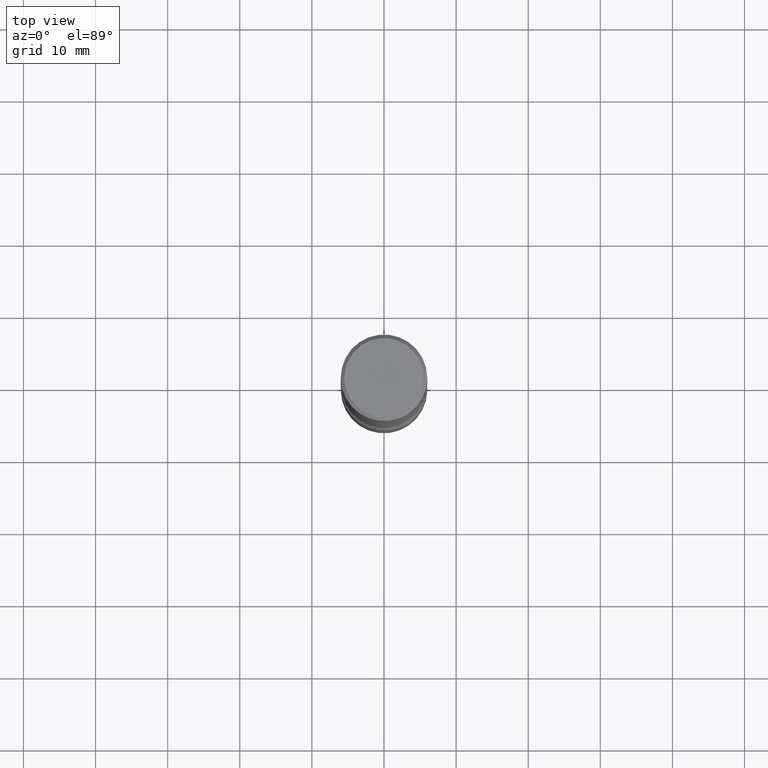
[diagram: clean part render]
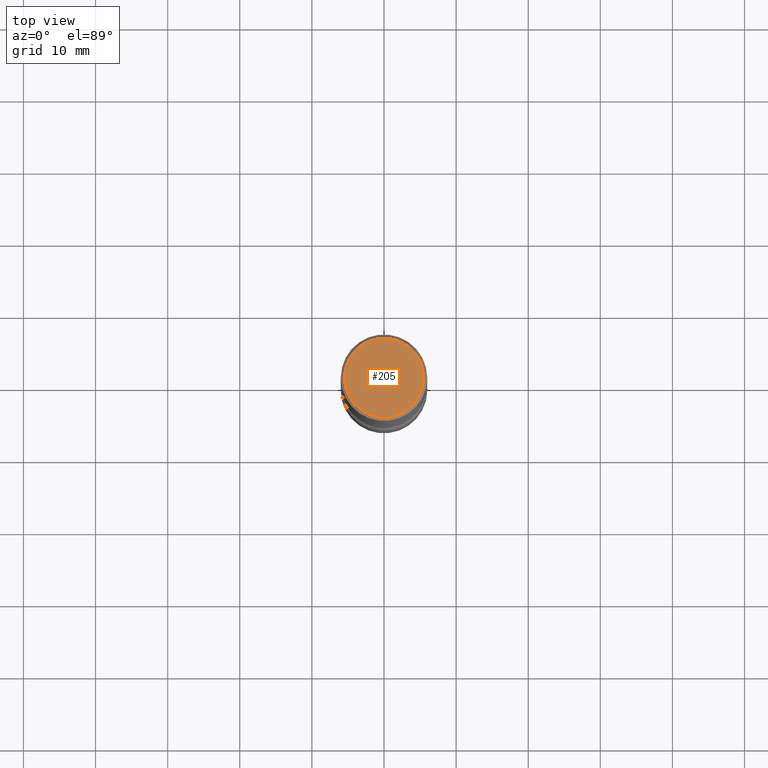
[diagram: same view with one face highlighted and labeled with its STEP entity id]
A machine part, top view. The second image highlights one B-rep face of the part: STEP entity #205.
In plain terms, the highlighted planar face has unit normal (0, -0, -1).
Its self-contained STEP definition (entity closure, byte-faithful):
#34 = AXIS2_PLACEMENT_3D ( 'NONE', #229, #145, #271 ) ;
#46 = FACE_OUTER_BOUND ( 'NONE', #204, .T. ) ;
#52 = DIRECTION ( 'NONE',  ( 2.438088387897960049E-29, -3.491481338843145188E-15, -1.000000000000000000 ) ) ;
#104 = CARTESIAN_POINT ( 'NONE',  ( -0.2161999999999998368, 1.544631344304201183E-15, 4.268512490089730842E-18 ) ) ;
#106 = AXIS2_PLACEMENT_3D ( 'NONE', #527, #445, #440 ) ;
#145 = DIRECTION ( 'NONE',  ( -2.445468806185136597E-29, 3.491481338843145583E-15, 1.000000000000000000 ) ) ;
#164 = VERTEX_POINT ( 'NONE', #104 ) ;
#191 = EDGE_CURVE ( 'NONE', #469, #164, #453, .T. ) ;
#204 = EDGE_LOOP ( 'NONE', ( #367, #224 ) ) ;
#205 = ADVANCED_FACE ( 'NONE', ( #46 ), #223, .F. ) ;
#223 = PLANE ( 'NONE',  #418 ) ;
#224 = ORIENTED_EDGE ( 'NONE', *, *, #191, .T. ) ;
#228 = CARTESIAN_POINT ( 'NONE',  ( 0.2161999999999998368, -1.586759460484351002E-15, 4.268512490111238857E-18 ) ) ;
#229 = CARTESIAN_POINT ( 'NONE',  ( -1.043851414335219820E-46, 1.490343170380447200E-32, 4.268512490100411279E-18 ) ) ;
#271 = DIRECTION ( 'NONE',  ( 1.000000000000000000, -6.982962677686266711E-15, 4.876217060660159599E-29 ) ) ;
#272 = EDGE_CURVE ( 'NONE', #164, #469, #325, .T. ) ;
#325 = CIRCLE ( 'NONE', #34, 0.2161999999999998368 ) ;
#367 = ORIENTED_EDGE ( 'NONE', *, *, #272, .T. ) ;
#395 = DIRECTION ( 'NONE',  ( -1.000000000000000000, 6.982962677686265922E-15, -4.876176775795935793E-29 ) ) ;
#418 = AXIS2_PLACEMENT_3D ( 'NONE', #558, #52, #395 ) ;
#440 = DIRECTION ( 'NONE',  ( 1.000000000000000000, -6.982962677686266711E-15, 4.876217060660159599E-29 ) ) ;
#445 = DIRECTION ( 'NONE',  ( -2.445468806185136597E-29, 3.491481338843145583E-15, 1.000000000000000000 ) ) ;
#453 = CIRCLE ( 'NONE', #106, 0.2161999999999998368 ) ;
#469 = VERTEX_POINT ( 'NONE', #228 ) ;
#527 = CARTESIAN_POINT ( 'NONE',  ( -1.043851414335219820E-46, 1.490343170380447200E-32, 4.268512490100411279E-18 ) ) ;
#558 = CARTESIAN_POINT ( 'NONE',  ( 1.509716530915769534E-15, 0.2161999999999998368, -7.527240092128373149E-16 ) ) ;